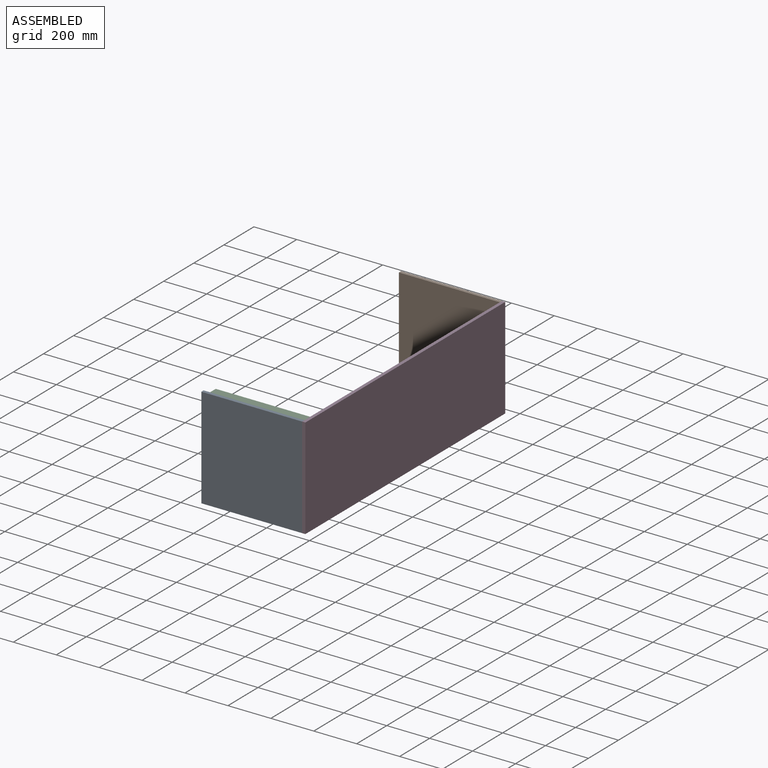
[diagram: assembled view]
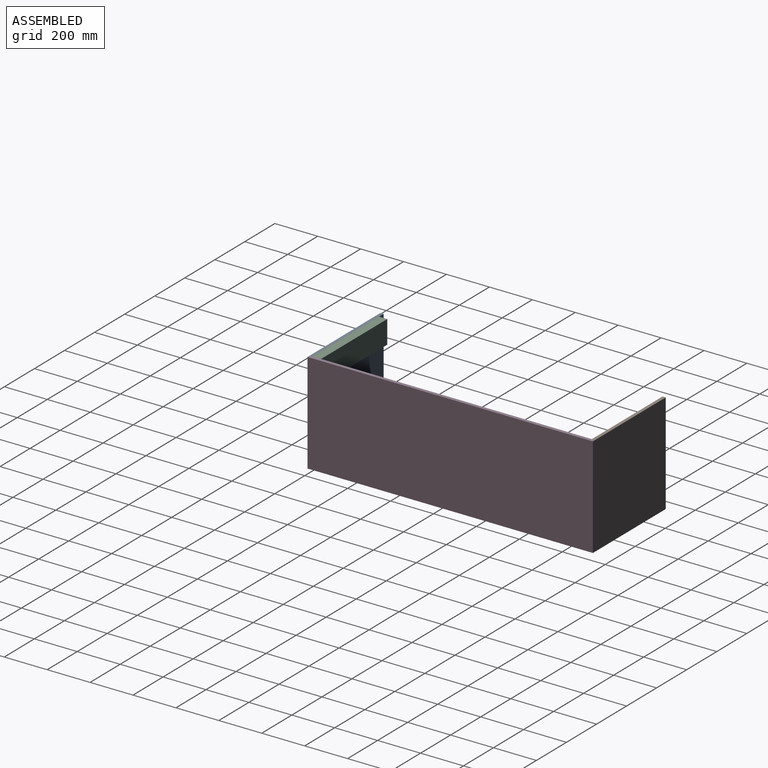
[diagram: assembled view, second angle]
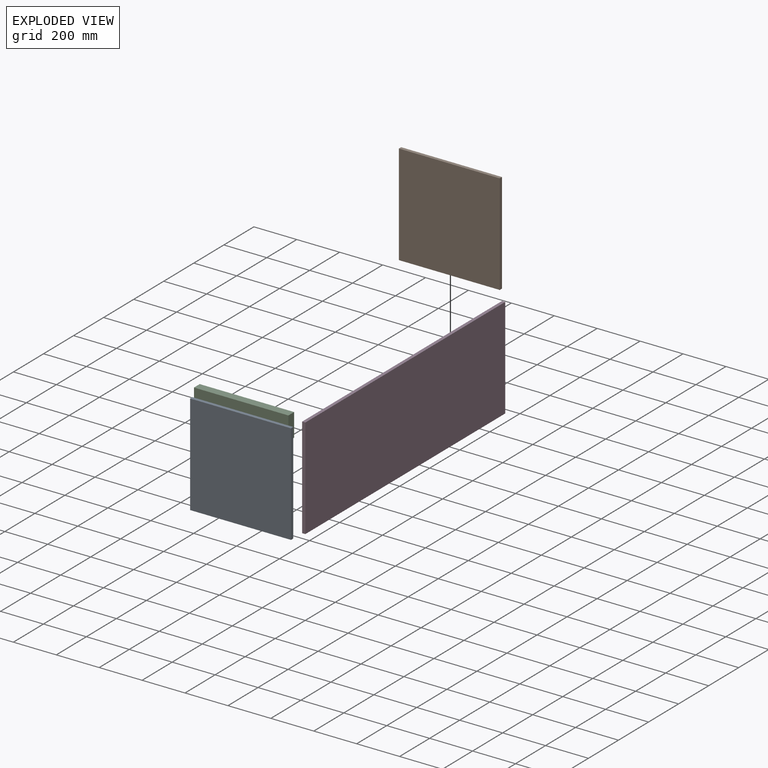
[diagram: exploded view]
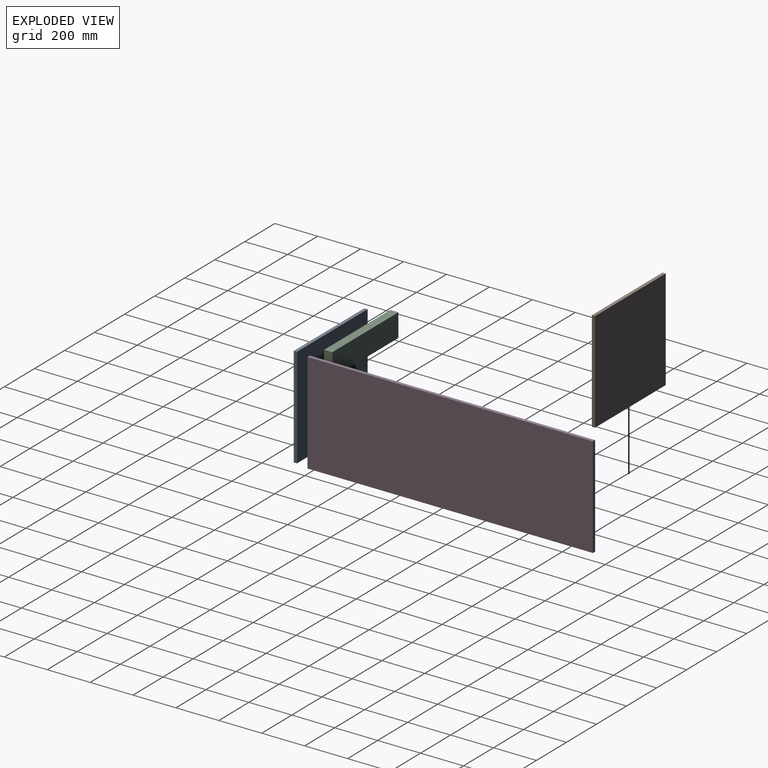
[diagram: exploded view, second angle]
ASSEMBLY  parts=4 mates=9
PART A: 6 faces, bbox 470x15x470 mm
  f0: plane 470x15mm, normal (0,0,-1), area 7050mm2, adj f1,f3,f4,f5
  f1: plane 470x15mm, normal (1,0,0), area 7050mm2, adj f0,f2,f4,f5
  f2: plane 470x15mm, normal (0,0,1), area 7050mm2, adj f1,f3,f4,f5
  f3: plane 470x15mm, normal (-1,0,0), area 7050mm2, adj f0,f2,f4,f5
  f4: plane 470x470mm, normal (0,-1,0), area 220900mm2, adj f0,f1,f2,f3
  f5: plane 470x470mm, normal (0,1,0), area 220900mm2, adj f0,f1,f2,f3
PART B: same geometry as A
PART C: 6 faces, bbox 440x38x108 mm
  f0: plane 440x38mm, normal (0,0,1), area 16720mm2, adj f1,f3,f4,f5
  f1: plane 108x38mm, normal (-1,0,0), area 4104mm2, adj f0,f2,f4,f5
  f2: plane 440x38mm, normal (0,0,-1), area 16720mm2, adj f1,f3,f4,f5
  f3: plane 108x38mm, normal (1,0,0), area 4104mm2, adj f0,f2,f4,f5
  f4: plane 440x108mm, normal (0,-1,0), area 47520mm2, adj f0,f1,f2,f3
  f5: plane 440x108mm, normal (0,1,0), area 47520mm2, adj f0,f1,f2,f3
PART D: 6 faces, bbox 1330x15x470 mm
  f0: plane 470x15mm, normal (-1,0,0), area 7050mm2, adj f1,f3,f4,f5
  f1: plane 1330x15mm, normal (0,0,-1), area 19950mm2, adj f0,f2,f4,f5
  f2: plane 470x15mm, normal (1,0,0), area 7050mm2, adj f1,f3,f4,f5
  f3: plane 1330x15mm, normal (0,0,1), area 19950mm2, adj f0,f2,f4,f5
  f4: plane 1330x470mm, normal (0,-1,0), area 625100mm2, adj f0,f1,f2,f3
  f5: plane 1330x470mm, normal (0,1,0), area 625100mm2, adj f0,f1,f2,f3
PLACE A t=(-483.98,-385.38,-71.77)mm
PLACE B t=(-483.98,929.62,-71.77)mm
PLACE C t=(-1073.98,-347.38,548.23)mm
PLACE D rot(axis=(0,0,-1),90deg) t=(-618.98,929.62,-71.77)mm
MATE planar A.f4 <-> D.f2  axis (0,-1,0) through (-868.98,-400.38,163.23)mm
MATE planar B.f2 <-> D.f3  axis (0,0,1) through (-868.98,922.12,398.23)mm
MATE planar D.f4 <-> C.f3  axis (-1,0,0) through (-633.98,264.62,163.23)mm
MATE planar C.f0 <-> D.f3  axis (0,0,1) through (-853.98,-366.38,398.23)mm
MATE planar D.f3 <-> A.f2  axis (0,0,1) through (-626.48,264.62,398.23)mm
MATE planar B.f5 <-> D.f0  axis (0,1,0) through (-868.98,929.62,163.23)mm
MATE planar D.f4 <-> B.f1  axis (-1,0,0) through (-633.98,264.62,163.23)mm
MATE planar C.f4 <-> A.f5  axis (0,-1,0) through (-853.98,-385.38,344.23)mm
MATE planar D.f4 <-> A.f1  axis (-1,0,0) through (-633.98,264.62,163.23)mm
